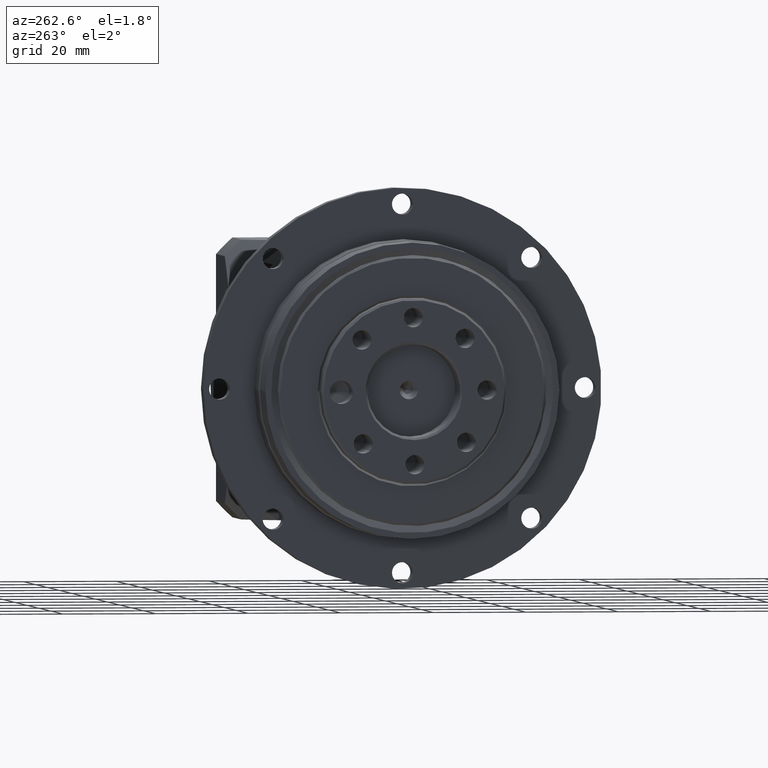
[diagram: clean part render]
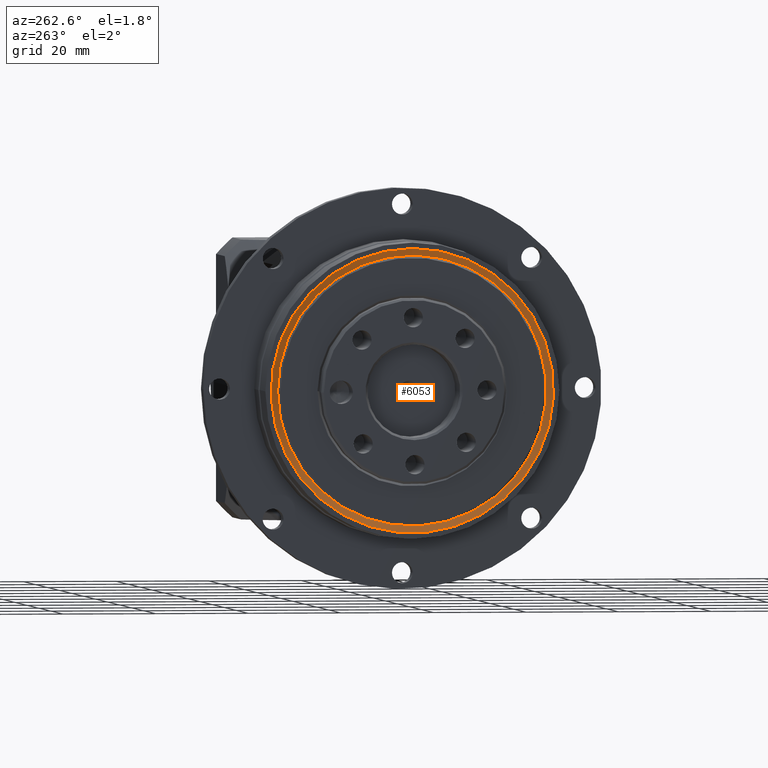
[diagram: same view with one face highlighted and labeled with its STEP entity id]
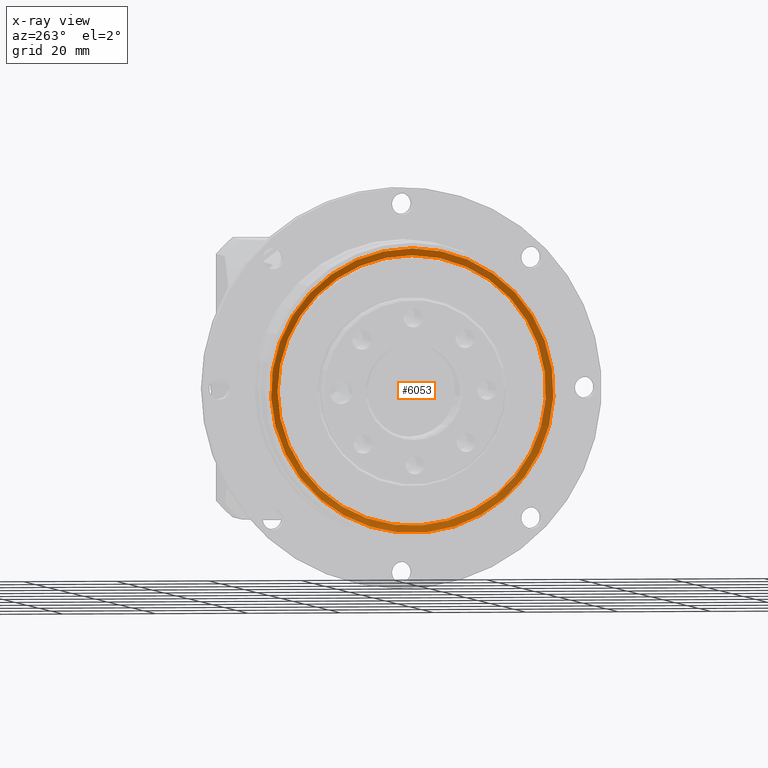
[diagram: x-ray of the same camera — body ghosted, the highlighted face saturated]
A machine part, auxiliary view. The second image highlights one B-rep face of the part: STEP entity #6053.
The next image is the same camera in x-ray: the body ghosted, the highlighted face saturated — about 0% of this face is hidden behind the body in this view.
In plain terms, the highlighted conical surface has half-angle 60 deg.
Its self-contained STEP definition (entity closure, byte-faithful):
#795=CONICAL_SURFACE('',#6742,29.75,60.);
#1183=FACE_BOUND('',#2057,.T.);
#1520=FACE_OUTER_BOUND('',#2056,.T.);
#2056=EDGE_LOOP('',(#4860));
#2057=EDGE_LOOP('',(#4861));
#2471=CIRCLE('',#6708,29.);
#2492=CIRCLE('',#6743,30.5);
#2933=VERTEX_POINT('',#10190);
#2954=VERTEX_POINT('',#10246);
#3613=EDGE_CURVE('',#2933,#2933,#2471,.T.);
#3634=EDGE_CURVE('',#2954,#2954,#2492,.T.);
#4860=ORIENTED_EDGE('',*,*,#3613,.T.);
#4861=ORIENTED_EDGE('',*,*,#3634,.T.);
#6053=ADVANCED_FACE('',(#1520,#1183),#795,.F.);
#6708=AXIS2_PLACEMENT_3D('',#10191,#8152,#8153);
#6742=AXIS2_PLACEMENT_3D('',#10245,#8220,#8221);
#6743=AXIS2_PLACEMENT_3D('',#10247,#8222,#8223);
#8152=DIRECTION('center_axis',(1.,-4.82253126321556E-16,2.92855270575438E-15));
#8153=DIRECTION('ref_axis',(2.92855270575438E-15,3.1086244689506E-15,-1.));
#8220=DIRECTION('center_axis',(-1.,4.82253126321556E-16,-2.92855270575438E-15));
#8221=DIRECTION('ref_axis',(2.92855270575438E-15,3.1086244689506E-15,-1.));
#8222=DIRECTION('center_axis',(-1.,4.82253126321556E-16,-2.92855270575438E-15));
#8223=DIRECTION('ref_axis',(2.92855270575438E-15,3.1086244689506E-15,-1.));
#10190=CARTESIAN_POINT('',(-48.6415806288753,-44.5811336692429,47.8582107166));
#10191=CARTESIAN_POINT('Origin',(-48.6415806288752,-44.5811336692429,18.8582107166));
#10245=CARTESIAN_POINT('Origin',(-49.0745933307674,-44.5811336692429,18.8582107166));
#10246=CARTESIAN_POINT('',(-49.5076060326598,-44.5811336692429,49.3582107166));
#10247=CARTESIAN_POINT('Origin',(-49.5076060326597,-44.5811336692429,18.8582107166));